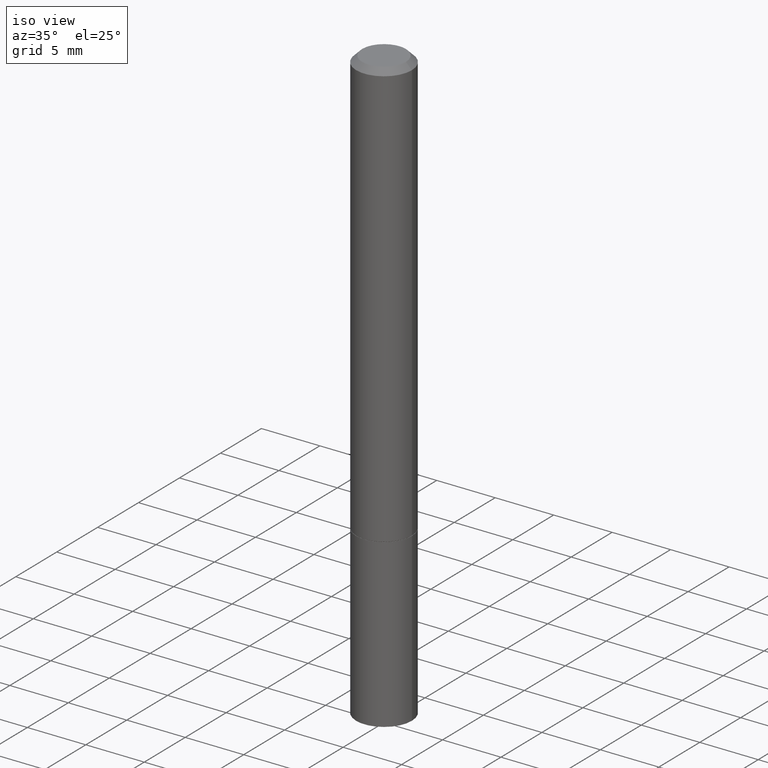
[diagram: clean part render]
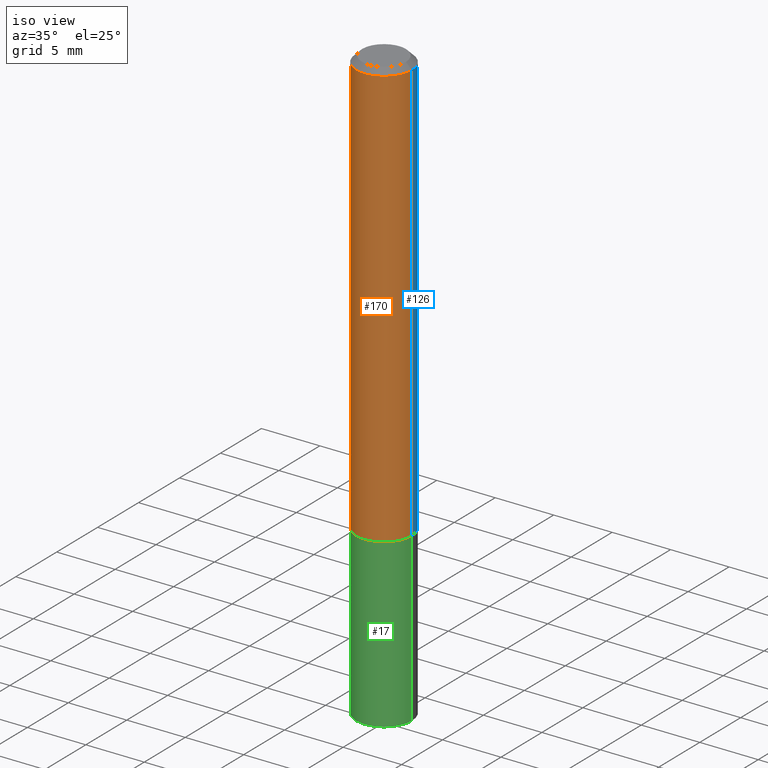
[diagram: same view with three faces highlighted in distinct colors, each labeled with its STEP entity id]
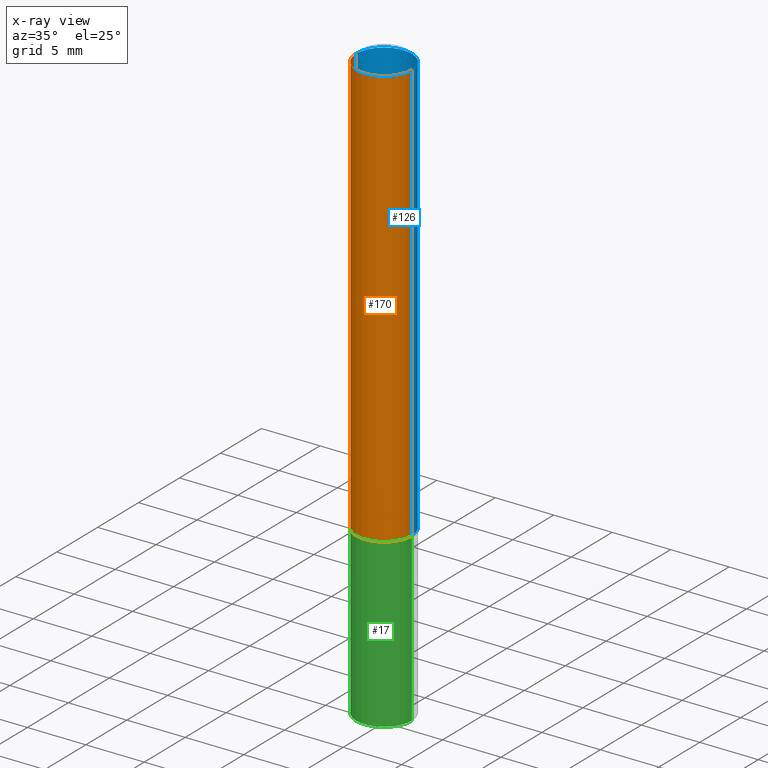
[diagram: x-ray of the same camera — body ghosted, the three highlighted faces saturated]
A machine part, iso view with three faces highlighted in distinct colors.
The next image is the same camera in x-ray (body ghosted, the three faces saturated) — at least one of them is partly hidden behind the body in this view.
Their STEP definitions:

[orange] entity #170 — the highlighted cylindrical surface (edge-blend (fillet) strip) has radius 2.3812 mm, axis along (-0, 0, 1).
#1 = CYLINDRICAL_SURFACE ( 'NONE', #86, 0.09374999999999991673 ) ;
#4 = CIRCLE ( 'NONE', #242, 0.09375000000000001388 ) ;
#6 = DIRECTION ( 'NONE',  ( -2.445468806185136597E-29, 3.491481338843145583E-15, 1.000000000000000000 ) ) ;
#15 = DIRECTION ( 'NONE',  ( -2.445468806185136877E-29, 3.491481338843145188E-15, 1.000000000000000000 ) ) ;
#29 = CARTESIAN_POINT ( 'NONE',  ( 3.512915940084948255E-29, -5.015512943248178546E-15, -1.436499999999999888 ) ) ;
#39 = LINE ( 'NONE', #267, #183 ) ;
#46 = CARTESIAN_POINT ( 'NONE',  ( -0.09374999999999991673, 6.661338147750933326E-16, -4.611501647113969791E-30 ) ) ;
#47 = VERTEX_POINT ( 'NONE', #166 ) ;
#54 = DIRECTION ( 'NONE',  ( -2.445468806185136597E-29, 3.491481338843145583E-15, 1.000000000000000000 ) ) ;
#70 = CARTESIAN_POINT ( 'NONE',  ( 4.890937612370274910E-31, -6.982962677686295307E-17, -0.02000000000000000736 ) ) ;
#75 = ORIENTED_EDGE ( 'NONE', *, *, #164, .T. ) ;
#86 = AXIS2_PLACEMENT_3D ( 'NONE', #117, #6, #259 ) ;
#91 = CARTESIAN_POINT ( 'NONE',  ( -0.09375000000000001388, -1.876537470237424631E-15, -1.436499999999999888 ) ) ;
#94 = DIRECTION ( 'NONE',  ( -2.445468806185136877E-29, 3.491481338843145188E-15, 1.000000000000000000 ) ) ;
#117 = CARTESIAN_POINT ( 'NONE',  ( 0.000000000000000000, 0.000000000000000000, 0.000000000000000000 ) ) ;
#133 = CIRCLE ( 'NONE', #326, 0.09374999999999983347 ) ;
#148 = DIRECTION ( 'NONE',  ( 1.000000000000000000, -6.982962677686261189E-15, 0.000000000000000000 ) ) ;
#156 = CARTESIAN_POINT ( 'NONE',  ( 0.09374999999999983347, -7.130013140679429031E-16, -0.02000000000000000736 ) ) ;
#164 = EDGE_CURVE ( 'NONE', #240, #47, #4, .T. ) ;
#166 = CARTESIAN_POINT ( 'NONE',  ( 0.09375000000000001388, -5.670165694281265261E-15, -1.436499999999999888 ) ) ;
#170 = ADVANCED_FACE ( 'NONE', ( #252 ), #1, .T. ) ;
#175 = DIRECTION ( 'NONE',  ( -2.445468806185136597E-29, 3.491481338843145583E-15, 1.000000000000000000 ) ) ;
#183 = VECTOR ( 'NONE', #15, 39.37007874015748143 ) ;
#207 = DIRECTION ( 'NONE',  ( 1.000000000000000000, -6.982962677686267499E-15, 0.000000000000000000 ) ) ;
#222 = EDGE_LOOP ( 'NONE', ( #324, #75, #327, #246 ) ) ;
#229 = EDGE_CURVE ( 'NONE', #240, #320, #264, .T. ) ;
#239 = CARTESIAN_POINT ( 'NONE',  ( -0.09374999999999983347, 5.848231242562234171E-16, -0.02000000000000000736 ) ) ;
#240 = VERTEX_POINT ( 'NONE', #91 ) ;
#242 = AXIS2_PLACEMENT_3D ( 'NONE', #29, #54, #148 ) ;
#246 = ORIENTED_EDGE ( 'NONE', *, *, #296, .F. ) ;
#252 = FACE_OUTER_BOUND ( 'NONE', #222, .T. ) ;
#259 = DIRECTION ( 'NONE',  ( 1.000000000000000000, -6.982962677686266711E-15, 4.876176775795935793E-29 ) ) ;
#264 = LINE ( 'NONE', #46, #309 ) ;
#267 = CARTESIAN_POINT ( 'NONE',  ( 0.09374999999999991673, -6.546527510330869125E-16, 4.571415727308685602E-30 ) ) ;
#270 = VERTEX_POINT ( 'NONE', #156 ) ;
#285 = EDGE_CURVE ( 'NONE', #47, #270, #39, .T. ) ;
#296 = EDGE_CURVE ( 'NONE', #320, #270, #133, .T. ) ;
#309 = VECTOR ( 'NONE', #94, 39.37007874015748143 ) ;
#320 = VERTEX_POINT ( 'NONE', #239 ) ;
#324 = ORIENTED_EDGE ( 'NONE', *, *, #229, .F. ) ;
#326 = AXIS2_PLACEMENT_3D ( 'NONE', #70, #175, #207 ) ;
#327 = ORIENTED_EDGE ( 'NONE', *, *, #285, .T. ) ;

[blue] entity #126 — the highlighted cylindrical surface (edge-blend (fillet) strip) has radius 2.3812 mm, axis along (-0, 0, 1).
#15 = DIRECTION ( 'NONE',  ( -2.445468806185136877E-29, 3.491481338843145188E-15, 1.000000000000000000 ) ) ;
#21 = ORIENTED_EDGE ( 'NONE', *, *, #229, .T. ) ;
#34 = CIRCLE ( 'NONE', #128, 0.09374999999999983347 ) ;
#39 = LINE ( 'NONE', #267, #183 ) ;
#46 = CARTESIAN_POINT ( 'NONE',  ( -0.09374999999999991673, 6.661338147750933326E-16, -4.611501647113969791E-30 ) ) ;
#47 = VERTEX_POINT ( 'NONE', #166 ) ;
#87 = DIRECTION ( 'NONE',  ( -2.445468806185136597E-29, 3.491481338843145583E-15, 1.000000000000000000 ) ) ;
#88 = FACE_OUTER_BOUND ( 'NONE', #304, .T. ) ;
#89 = EDGE_CURVE ( 'NONE', #270, #320, #34, .T. ) ;
#91 = CARTESIAN_POINT ( 'NONE',  ( -0.09375000000000001388, -1.876537470237424631E-15, -1.436499999999999888 ) ) ;
#94 = DIRECTION ( 'NONE',  ( -2.445468806185136877E-29, 3.491481338843145188E-15, 1.000000000000000000 ) ) ;
#106 = DIRECTION ( 'NONE',  ( 1.000000000000000000, -6.982962677686261189E-15, 0.000000000000000000 ) ) ;
#112 = ORIENTED_EDGE ( 'NONE', *, *, #89, .F. ) ;
#126 = ADVANCED_FACE ( 'NONE', ( #88 ), #169, .T. ) ;
#128 = AXIS2_PLACEMENT_3D ( 'NONE', #283, #342, #340 ) ;
#145 = CARTESIAN_POINT ( 'NONE',  ( 3.512915940084948255E-29, -5.015512943248178546E-15, -1.436499999999999888 ) ) ;
#156 = CARTESIAN_POINT ( 'NONE',  ( 0.09374999999999983347, -7.130013140679429031E-16, -0.02000000000000000736 ) ) ;
#162 = ORIENTED_EDGE ( 'NONE', *, *, #218, .T. ) ;
#166 = CARTESIAN_POINT ( 'NONE',  ( 0.09375000000000001388, -5.670165694281265261E-15, -1.436499999999999888 ) ) ;
#169 = CYLINDRICAL_SURFACE ( 'NONE', #213, 0.09374999999999991673 ) ;
#183 = VECTOR ( 'NONE', #15, 39.37007874015748143 ) ;
#211 = ORIENTED_EDGE ( 'NONE', *, *, #285, .F. ) ;
#213 = AXIS2_PLACEMENT_3D ( 'NONE', #228, #344, #227 ) ;
#218 = EDGE_CURVE ( 'NONE', #47, #240, #321, .T. ) ;
#227 = DIRECTION ( 'NONE',  ( 1.000000000000000000, -6.982962677686266711E-15, 4.876176775795935793E-29 ) ) ;
#228 = CARTESIAN_POINT ( 'NONE',  ( 0.000000000000000000, 0.000000000000000000, 0.000000000000000000 ) ) ;
#229 = EDGE_CURVE ( 'NONE', #240, #320, #264, .T. ) ;
#239 = CARTESIAN_POINT ( 'NONE',  ( -0.09374999999999983347, 5.848231242562234171E-16, -0.02000000000000000736 ) ) ;
#240 = VERTEX_POINT ( 'NONE', #91 ) ;
#264 = LINE ( 'NONE', #46, #309 ) ;
#267 = CARTESIAN_POINT ( 'NONE',  ( 0.09374999999999991673, -6.546527510330869125E-16, 4.571415727308685602E-30 ) ) ;
#270 = VERTEX_POINT ( 'NONE', #156 ) ;
#283 = CARTESIAN_POINT ( 'NONE',  ( 4.890937612370274910E-31, -6.982962677686295307E-17, -0.02000000000000000736 ) ) ;
#285 = EDGE_CURVE ( 'NONE', #47, #270, #39, .T. ) ;
#304 = EDGE_LOOP ( 'NONE', ( #162, #21, #112, #211 ) ) ;
#309 = VECTOR ( 'NONE', #94, 39.37007874015748143 ) ;
#320 = VERTEX_POINT ( 'NONE', #239 ) ;
#321 = CIRCLE ( 'NONE', #362, 0.09375000000000001388 ) ;
#340 = DIRECTION ( 'NONE',  ( 1.000000000000000000, -6.982962677686267499E-15, 0.000000000000000000 ) ) ;
#342 = DIRECTION ( 'NONE',  ( -2.445468806185136597E-29, 3.491481338843145583E-15, 1.000000000000000000 ) ) ;
#344 = DIRECTION ( 'NONE',  ( -2.445468806185136597E-29, 3.491481338843145583E-15, 1.000000000000000000 ) ) ;
#362 = AXIS2_PLACEMENT_3D ( 'NONE', #145, #87, #106 ) ;

[green] entity #17 — the highlighted cylindrical surface (edge-blend (fillet) strip) has radius 2.3813 mm, axis along (-0, 0, 1).
#3 = LINE ( 'NONE', #251, #40 ) ;
#8 = CARTESIAN_POINT ( 'NONE',  ( 4.890937612370273194E-29, -6.982962677686291165E-15, -2.000000000000000000 ) ) ;
#14 = CYLINDRICAL_SURFACE ( 'NONE', #363, 0.09375000000000001388 ) ;
#17 = ADVANCED_FACE ( 'NONE', ( #185 ), #14, .T. ) ;
#31 = CARTESIAN_POINT ( 'NONE',  ( 0.09375000000000001388, -7.637615428719378669E-15, -2.000000000000000000 ) ) ;
#40 = VECTOR ( 'NONE', #276, 39.37007874015748143 ) ;
#42 = DIRECTION ( 'NONE',  ( -2.445468806185136597E-29, 3.491481338843145583E-15, 1.000000000000000000 ) ) ;
#50 = AXIS2_PLACEMENT_3D ( 'NONE', #8, #42, #214 ) ;
#53 = ORIENTED_EDGE ( 'NONE', *, *, #76, .T. ) ;
#56 = DIRECTION ( 'NONE',  ( 1.000000000000000000, -6.982962677686261189E-15, 0.000000000000000000 ) ) ;
#57 = CIRCLE ( 'NONE', #139, 0.09375000000000001388 ) ;
#64 = CIRCLE ( 'NONE', #50, 0.09375000000000001388 ) ;
#76 = EDGE_CURVE ( 'NONE', #206, #102, #3, .T. ) ;
#80 = VERTEX_POINT ( 'NONE', #199 ) ;
#102 = VERTEX_POINT ( 'NONE', #203 ) ;
#125 = DIRECTION ( 'NONE',  ( -2.445468806185136877E-29, 3.491481338843145188E-15, 1.000000000000000000 ) ) ;
#139 = AXIS2_PLACEMENT_3D ( 'NONE', #143, #287, #56 ) ;
#143 = CARTESIAN_POINT ( 'NONE',  ( 3.515361408891133858E-29, -5.019004424587021553E-15, -1.437500000000000000 ) ) ;
#159 = EDGE_CURVE ( 'NONE', #80, #102, #57, .T. ) ;
#177 = VERTEX_POINT ( 'NONE', #345 ) ;
#180 = ORIENTED_EDGE ( 'NONE', *, *, #257, .F. ) ;
#185 = FACE_OUTER_BOUND ( 'NONE', #237, .T. ) ;
#192 = CARTESIAN_POINT ( 'NONE',  ( 0.000000000000000000, 0.000000000000000000, 0.000000000000000000 ) ) ;
#198 = VECTOR ( 'NONE', #125, 39.37007874015748143 ) ;
#199 = CARTESIAN_POINT ( 'NONE',  ( -0.09375000000000001388, -5.334849736361562435E-15, -1.437500000000000000 ) ) ;
#203 = CARTESIAN_POINT ( 'NONE',  ( 0.09375000000000001388, -5.673657175620109057E-15, -1.437500000000000000 ) ) ;
#206 = VERTEX_POINT ( 'NONE', #31 ) ;
#214 = DIRECTION ( 'NONE',  ( 1.000000000000000000, -6.982962677686261189E-15, 0.000000000000000000 ) ) ;
#237 = EDGE_LOOP ( 'NONE', ( #180, #292, #53, #275 ) ) ;
#251 = CARTESIAN_POINT ( 'NONE',  ( 0.09375000000000001388, -6.546527510330875041E-16, 4.571415727308690506E-30 ) ) ;
#257 = EDGE_CURVE ( 'NONE', #177, #80, #261, .T. ) ;
#261 = LINE ( 'NONE', #291, #198 ) ;
#275 = ORIENTED_EDGE ( 'NONE', *, *, #159, .F. ) ;
#276 = DIRECTION ( 'NONE',  ( -2.445468806185136877E-29, 3.491481338843145188E-15, 1.000000000000000000 ) ) ;
#287 = DIRECTION ( 'NONE',  ( -2.445468806185136597E-29, 3.491481338843145583E-15, 1.000000000000000000 ) ) ;
#291 = CARTESIAN_POINT ( 'NONE',  ( -0.09375000000000001388, 6.661338147750940229E-16, -4.611501647113973995E-30 ) ) ;
#292 = ORIENTED_EDGE ( 'NONE', *, *, #359, .T. ) ;
#306 = DIRECTION ( 'NONE',  ( -2.445468806185136597E-29, 3.491481338843145583E-15, 1.000000000000000000 ) ) ;
#307 = DIRECTION ( 'NONE',  ( 1.000000000000000000, -6.982962677686265922E-15, 4.876176775795935793E-29 ) ) ;
#345 = CARTESIAN_POINT ( 'NONE',  ( -0.09375000000000001388, -5.334849736361562435E-15, -2.000000000000000000 ) ) ;
#359 = EDGE_CURVE ( 'NONE', #177, #206, #64, .T. ) ;
#363 = AXIS2_PLACEMENT_3D ( 'NONE', #192, #306, #307 ) ;